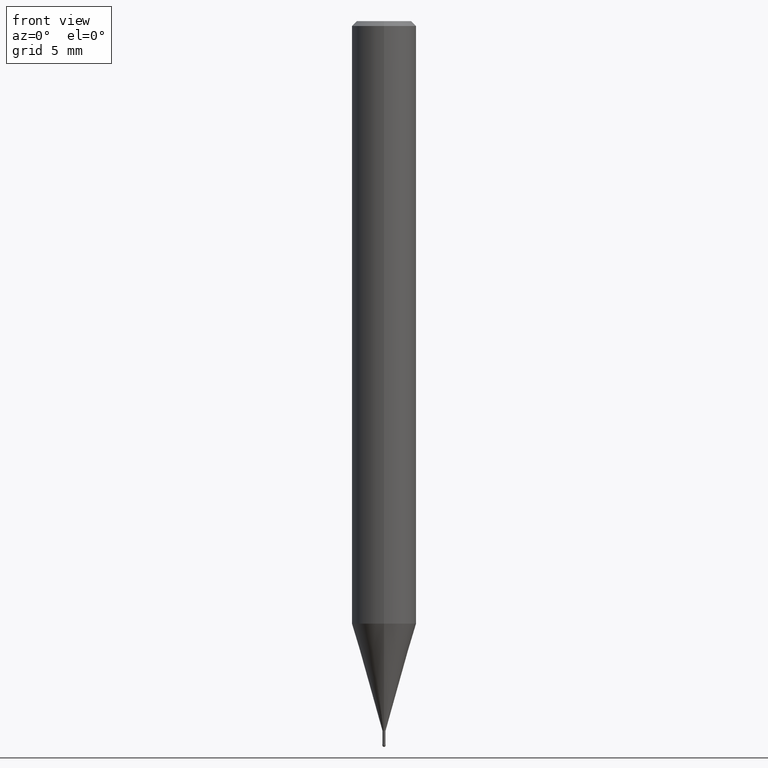
[diagram: clean part render]
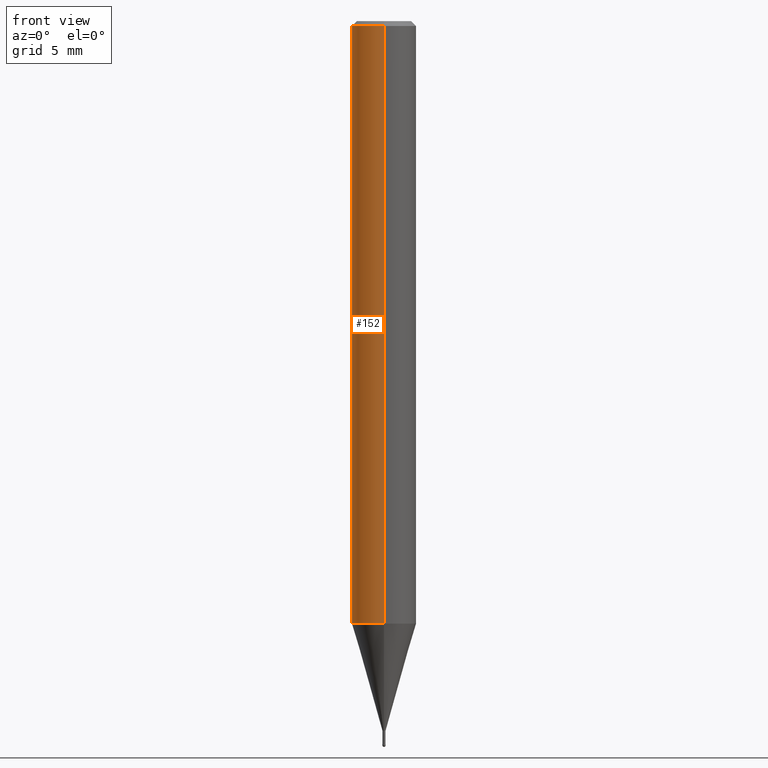
[diagram: same view with one face highlighted and labeled with its STEP entity id]
A machine part, front view. The second image highlights one B-rep face of the part: STEP entity #152.
In plain terms, the highlighted cylindrical surface (edge-blend (fillet) strip) has radius 2 mm, axis along (-0, -0, 1).
Its self-contained STEP definition (entity closure, byte-faithful):
#100=VERTEX_POINT('',#242);
#122=EDGE_CURVE('',#184,#204,#270,.T.);
#152=ADVANCED_FACE('',(#303),#304,.T.);
#164=VERTEX_POINT('',#316);
#184=VERTEX_POINT('',#339);
#194=EDGE_CURVE('',#100,#164,#350,.T.);
#202=EDGE_CURVE('',#100,#184,#358,.T.);
#204=VERTEX_POINT('',#360);
#212=EDGE_CURVE('',#204,#164,#370,.T.);
#242=CARTESIAN_POINT('',(2.44921270764475E-016,-2.0,-37.356));
#270=CIRCLE('',#427,2.0);
#303=FACE_OUTER_BOUND('',#472,.T.);
#304=CYLINDRICAL_SURFACE('',#473,2.0);
#316=CARTESIAN_POINT('',(0.0,2.0,-37.356));
#339=CARTESIAN_POINT('',(2.44921270764475E-016,-2.0,-0.299999999999997));
#350=CIRCLE('',#530,2.0);
#358=LINE('',#538,#539);
#360=CARTESIAN_POINT('',(0.0,2.0,-0.299999999999997));
#370=LINE('',#552,#553);
#427=AXIS2_PLACEMENT_3D('',#609,#610,#611);
#472=EDGE_LOOP('',(#656,#657,#658,#659));
#473=AXIS2_PLACEMENT_3D('',#660,#661,#662);
#530=AXIS2_PLACEMENT_3D('',#713,#714,#715);
#538=CARTESIAN_POINT('',(2.44921270764475E-016,-2.0,-18.828));
#539=VECTOR('',#721,1.0);
#552=CARTESIAN_POINT('',(-2.44921270764475E-016,2.0,-18.828));
#553=VECTOR('',#738,1.0);
#609=CARTESIAN_POINT('',(0.0,0.0,-0.299999999999997));
#610=DIRECTION('',(0.0,0.0,-1.0));
#611=DIRECTION('',(0.0,1.0,0.0));
#656=ORIENTED_EDGE('',*,*,#212,.T.);
#657=ORIENTED_EDGE('',*,*,#194,.F.);
#658=ORIENTED_EDGE('',*,*,#202,.T.);
#659=ORIENTED_EDGE('',*,*,#122,.T.);
#660=CARTESIAN_POINT('',(0.0,0.0,-18.828));
#661=DIRECTION('',(-0.0,-0.0,1.0));
#662=DIRECTION('',(0.0,1.0,0.0));
#713=CARTESIAN_POINT('',(0.0,0.0,-37.356));
#714=DIRECTION('',(0.0,0.0,-1.0));
#715=DIRECTION('',(0.0,1.0,0.0));
#721=DIRECTION('',(-0.0,-0.0,1.0));
#738=DIRECTION('',(0.0,0.0,-1.0));